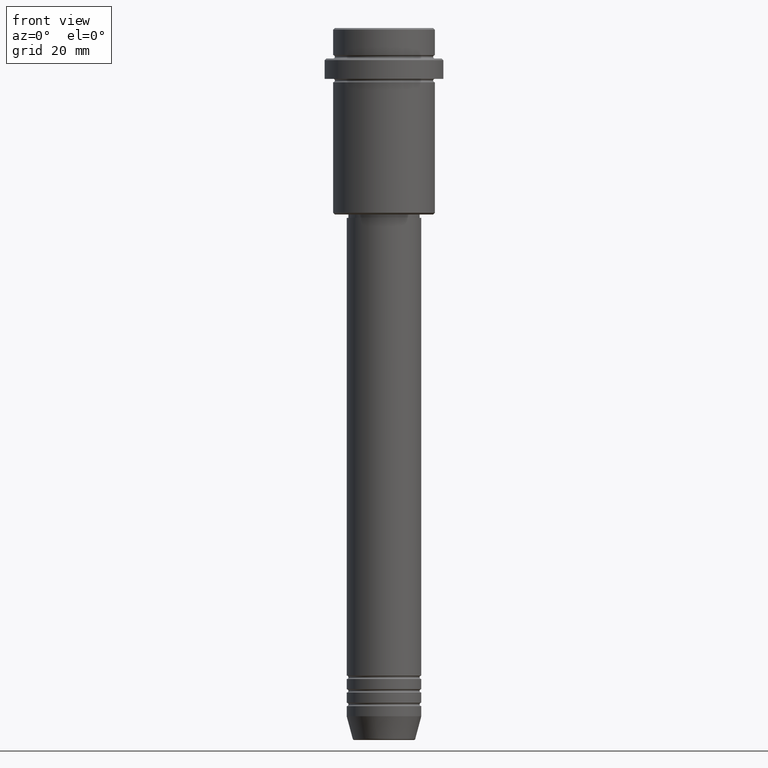
[diagram: clean part render]
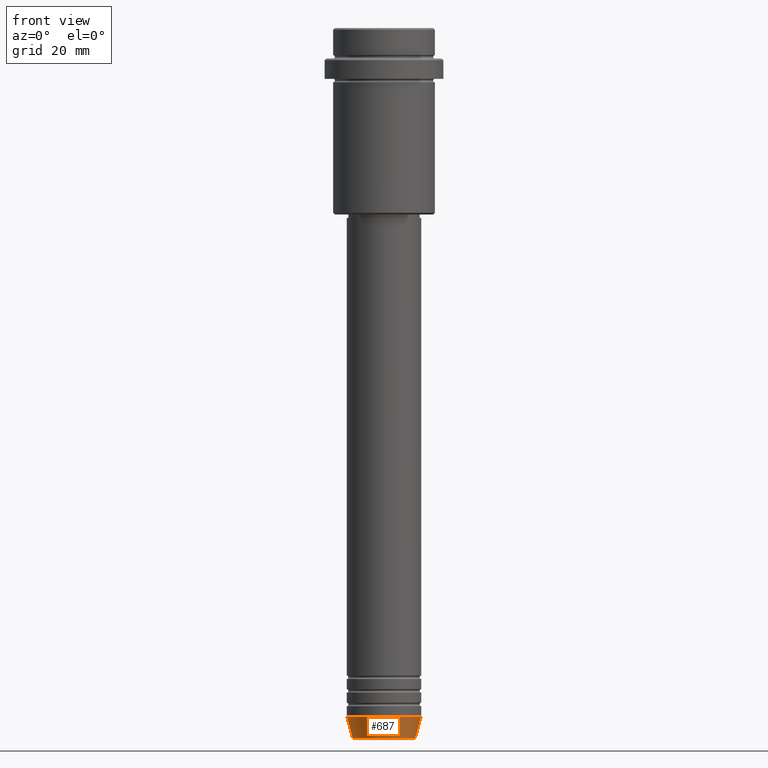
[diagram: same view with one face highlighted and labeled with its STEP entity id]
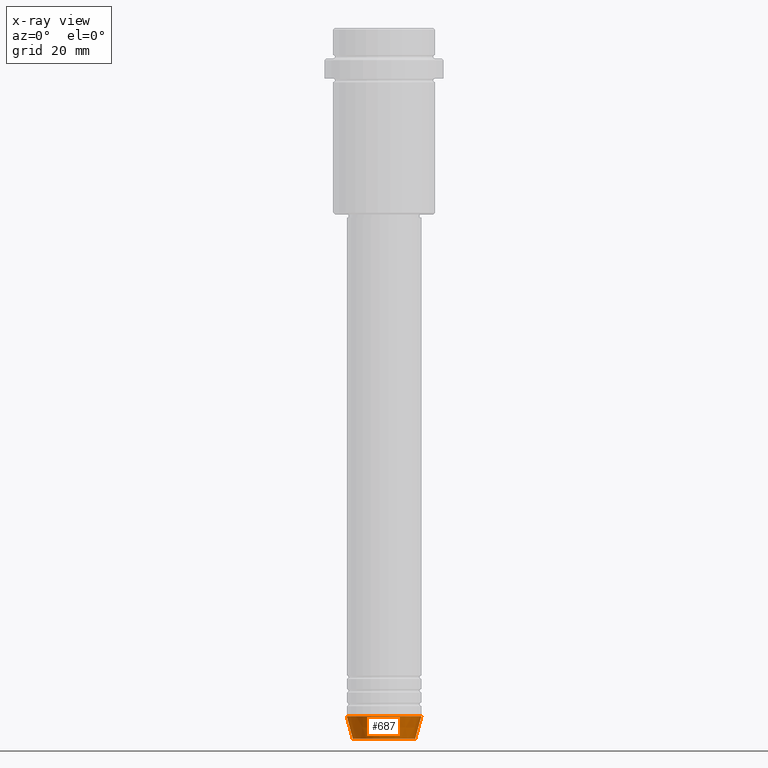
[diagram: x-ray of the same camera — body ghosted, the highlighted face saturated]
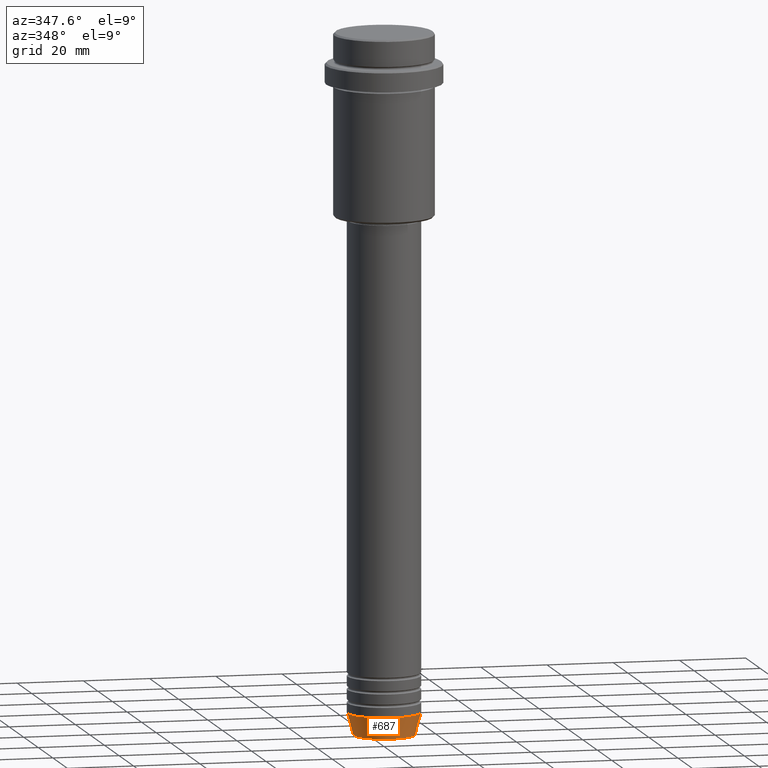
[diagram: same view with one face highlighted and labeled with its STEP entity id]
A machine part, front view. The second image highlights one B-rep face of the part: STEP entity #687.
The next image is the same camera in x-ray: the body ghosted, the highlighted face saturated — about 0% of this face is hidden behind the body in this view.
A second angle (auxiliary view) of the same face is appended — the face is thin or edge-on in the first view.
In plain terms, the highlighted conical surface has half-angle 15 deg.
Its self-contained STEP definition (entity closure, byte-faithful):
#38 = DIRECTION ( 'NONE',  ( -0.000000000000000000, -0.000000000000000000, 1.000000000000000000 ) ) ;
#81 = EDGE_CURVE ( 'NONE', #921, #177, #1009, .T. ) ;
#152 = LINE ( 'NONE', #1365, #469 ) ;
#154 = CARTESIAN_POINT ( 'NONE',  ( 11.00000000000000000, 0.000000000000000000, -203.0000000000000000 ) ) ;
#177 = VERTEX_POINT ( 'NONE', #940 ) ;
#215 = DIRECTION ( 'NONE',  ( 1.000000000000000000, 0.000000000000000000, 0.000000000000000000 ) ) ;
#284 = CARTESIAN_POINT ( 'NONE',  ( 0.000000000000000000, 0.000000000000000000, -203.0000000000000000 ) ) ;
#286 = CIRCLE ( 'NONE', #1259, 11.00000000000000000 ) ;
#345 = ORIENTED_EDGE ( 'NONE', *, *, #1403, .F. ) ;
#469 = VECTOR ( 'NONE', #1138, 1000.000000000000000 ) ;
#544 = DIRECTION ( 'NONE',  ( 1.000000000000000000, 0.000000000000000000, 0.000000000000000000 ) ) ;
#550 = DIRECTION ( 'NONE',  ( -0.000000000000000000, -0.000000000000000000, 1.000000000000000000 ) ) ;
#584 = DIRECTION ( 'NONE',  ( 0.2588190451025213501, 0.000000000000000000, 0.9659258262890680902 ) ) ;
#614 = ORIENTED_EDGE ( 'NONE', *, *, #1092, .F. ) ;
#615 = CARTESIAN_POINT ( 'NONE',  ( 11.00000000000000000, 0.000000000000000000, -203.0000000000000000 ) ) ;
#634 = VERTEX_POINT ( 'NONE', #154 ) ;
#679 = EDGE_LOOP ( 'NONE', ( #614, #766, #1404, #345 ) ) ;
#680 = CARTESIAN_POINT ( 'NONE',  ( 0.000000000000000000, 0.000000000000000000, -203.0000000000000000 ) ) ;
#687 = ADVANCED_FACE ( 'NONE', ( #909 ), #1136, .T. ) ;
#711 = DIRECTION ( 'NONE',  ( 1.000000000000000000, 0.000000000000000000, 0.000000000000000000 ) ) ;
#755 = VECTOR ( 'NONE', #584, 1000.000000000000000 ) ;
#766 = ORIENTED_EDGE ( 'NONE', *, *, #81, .T. ) ;
#779 = AXIS2_PLACEMENT_3D ( 'NONE', #990, #1065, #215 ) ;
#780 = CARTESIAN_POINT ( 'NONE',  ( -9.223655072137189492, 1.238341722557647202E-15, -209.6294095225512706 ) ) ;
#835 = VERTEX_POINT ( 'NONE', #1381 ) ;
#909 = FACE_OUTER_BOUND ( 'NONE', #679, .T. ) ;
#921 = VERTEX_POINT ( 'NONE', #780 ) ;
#940 = CARTESIAN_POINT ( 'NONE',  ( 9.223655072137189492, 0.000000000000000000, -209.6294095225512706 ) ) ;
#990 = CARTESIAN_POINT ( 'NONE',  ( 0.000000000000000000, 0.000000000000000000, -209.6294095225512706 ) ) ;
#1009 = CIRCLE ( 'NONE', #779, 9.223655072137189492 ) ;
#1027 = AXIS2_PLACEMENT_3D ( 'NONE', #284, #38, #711 ) ;
#1064 = EDGE_CURVE ( 'NONE', #177, #634, #1338, .T. ) ;
#1065 = DIRECTION ( 'NONE',  ( -0.000000000000000000, -0.000000000000000000, 1.000000000000000000 ) ) ;
#1092 = EDGE_CURVE ( 'NONE', #921, #835, #152, .T. ) ;
#1136 = CONICAL_SURFACE ( 'NONE', #1027, 11.00000000000000000, 0.2617993877991500740 ) ;
#1138 = DIRECTION ( 'NONE',  ( -0.2588190451025213501, 3.169619151431772337E-17, 0.9659258262890680902 ) ) ;
#1259 = AXIS2_PLACEMENT_3D ( 'NONE', #680, #550, #544 ) ;
#1338 = LINE ( 'NONE', #615, #755 ) ;
#1365 = CARTESIAN_POINT ( 'NONE',  ( -11.00000000000000000, 1.347111479062088405E-15, -203.0000000000000000 ) ) ;
#1381 = CARTESIAN_POINT ( 'NONE',  ( -11.00000000000000000, 1.347111479062088405E-15, -203.0000000000000000 ) ) ;
#1403 = EDGE_CURVE ( 'NONE', #835, #634, #286, .T. ) ;
#1404 = ORIENTED_EDGE ( 'NONE', *, *, #1064, .T. ) ;